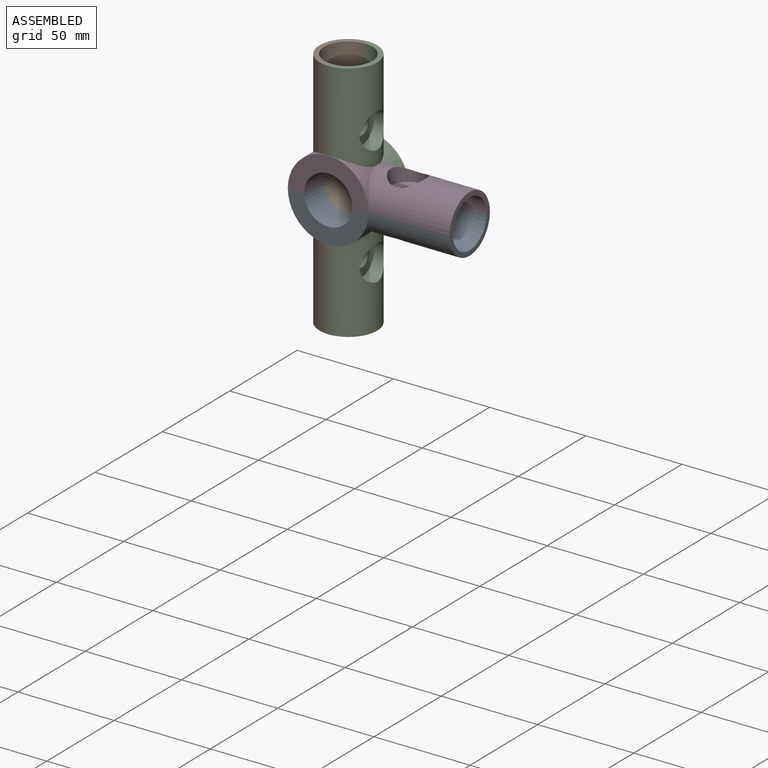
[diagram: assembled view]
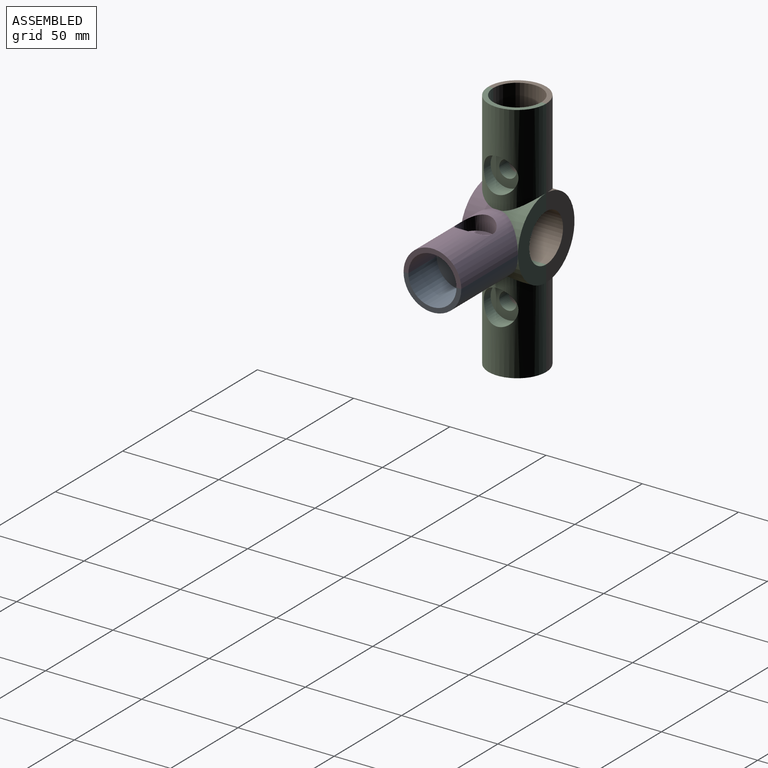
[diagram: assembled view, second angle]
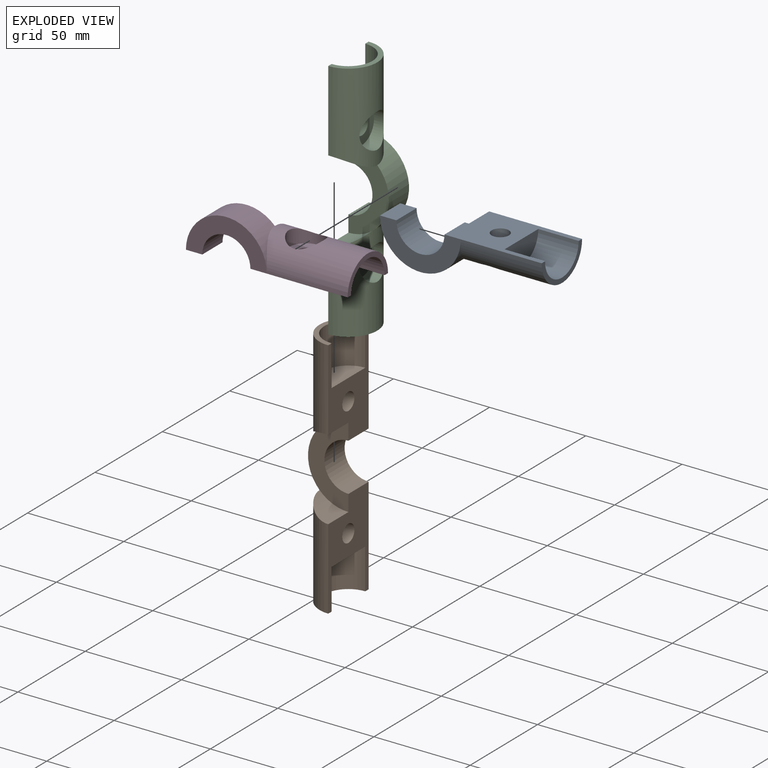
[diagram: exploded view]
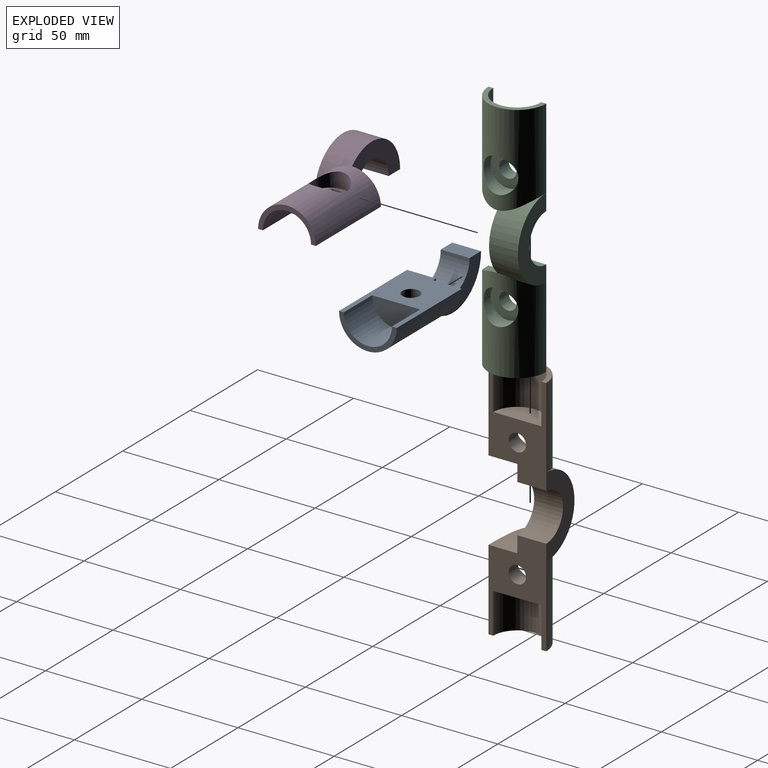
[diagram: exploded view, second angle]
ASSEMBLY  parts=4 mates=3
PART A: 14 faces, bbox 84x30x21 mm
  f0: plane 30x15mm, normal (-1,0,0), area 108mm2, adj f1,f8,f9
  f1: plane 50.5x30mm, normal (0,0,-1), area 893.4mm2, adj f0,f3,f4,f6,f7,f8,f9,f10
  f2: cylinder r=21mm len=42mm, axis (0,1,0), area 798.6mm2, adj f3,f5,f6,f8
  f3: plane 35.7x21mm, normal (0,1,0), area 382.1mm2, adj f1,f2,f4,f5,f7
  f4: cylinder r=12.5mm len=25mm, axis (0,1,0), area 589mm2, adj f1,f3,f5,f6
  f5: plane 15x8.5mm, normal (0,0,-1), area 127.5mm2, adj f2,f3,f4,f6
  f6: plane 42x21mm, normal (0,-1,0), area 447.3mm2, adj f1,f2,f4,f5
  f7: plane 15x15mm, normal (1,0,0), area 176.7mm2, adj f1,f3,f8
  f8: cylinder r=15mm len=48.3mm, axis (1,0,0), area 1930.7mm2, adj f0,f1,f2,f7,f11
  f9: cylinder r=12.5mm len=25mm, axis (1,0,0), area 824.7mm2, adj f0,f1,f10
  f10: plane 25x12.5mm, normal (-1,0,0), area 245.4mm2, adj f1,f9
  f11: cylinder r=9mm len=18mm, axis (0,0,-1), area 369.9mm2, adj f8,f13
  f12: cylinder r=4.5mm len=9mm, axis (0,0,-1), area 197.9mm2, adj f1,f13
  f13: plane 18x18mm, normal (0,0,1), area 190.9mm2, adj f11,f12
PART B: 22 faces, bbox 126x30x21 mm
  f0: plane 30x15mm, normal (1,0,0), area 108mm2, adj f1,f9,f12
  f1: cylinder r=12.5mm len=25mm, axis (1,0,0), area 824.7mm2, adj f0,f2,f9
  f2: plane 25x12.5mm, normal (1,0,0), area 245.4mm2, adj f1,f9
  f3: plane 25x12.5mm, normal (-1,0,0), area 245.4mm2, adj f4,f7
  f4: cylinder r=12.5mm len=25mm, axis (1,0,0), area 824.7mm2, adj f3,f5,f7
  f5: plane 30x15mm, normal (-1,0,0), area 108mm2, adj f4,f7,f13
  f6: cylinder r=21mm len=42mm, axis (0,-1,0), area 607.6mm2, adj f8,f11,f12,f13
  f7: plane 50.5x30mm, normal (0,0,1), area 798.9mm2, adj f3,f4,f5,f8,f10,f11,f13,f14
  f8: plane 42x21mm, normal (0,-1,0), area 447.3mm2, adj f6,f7,f9,f10,f14,f15
  f9: plane 50.5x30mm, normal (0,0,1), area 798.9mm2, adj f0,f1,f2,f8,f10,f11,f12,f15
  f10: cylinder r=12.5mm len=25mm, axis (0,-1,0), area 589mm2, adj f7,f8,f9,f11
  f11: plane 42x21mm, normal (0,1,0), area 447.3mm2, adj f6,f7,f9,f10
  f12: cylinder r=15mm len=48.3mm, axis (1,0,0), area 1853.1mm2, adj f0,f6,f9,f15,f18
  f13: cylinder r=15mm len=48.3mm, axis (1,0,0), area 1853.7mm2, adj f5,f6,f7,f14,f19
  f14: cylinder r=21mm len=15mm, axis (0,1,0), area 191mm2, adj f7,f8,f13
  f15: cylinder r=21mm len=15mm, axis (0,1,0), area 191mm2, adj f8,f9,f12
  f16: cylinder r=4.5mm len=9mm, axis (0,0,1), area 197.9mm2, adj f9,f17
  f17: plane 18x18mm, normal (0,0,-1), area 190.9mm2, adj f16,f18
  f18: cylinder r=9mm len=18mm, axis (0,0,1), area 369.9mm2, adj f12,f17
  f19: cylinder r=9mm len=18mm, axis (0,0,1), area 369.9mm2, adj f13,f21
  f20: cylinder r=4.5mm len=9mm, axis (0,0,1), area 197.9mm2, adj f7,f21
  f21: plane 18x18mm, normal (0,0,-1), area 190.9mm2, adj f19,f20
PART C: same geometry as B
PART D: 14 faces, bbox 84x30x21 mm
  f0: plane 15x15mm, normal (-1,0,0), area 176.7mm2, adj f4,f6,f10
  f1: plane 25x12.5mm, normal (1,0,0), area 245.4mm2, adj f2,f4
  f2: cylinder r=12.5mm len=25mm, axis (-1,0,0), area 824.7mm2, adj f1,f3,f4
  f3: plane 30x15mm, normal (1,0,0), area 108mm2, adj f2,f4,f10
  f4: plane 50.5x30mm, normal (0,0,-1), area 893.4mm2, adj f0,f1,f2,f3,f6,f8,f9,f10
  f5: cylinder r=21mm len=42mm, axis (0,1,0), area 798.6mm2, adj f6,f7,f9,f10
  f6: plane 35.7x21mm, normal (0,1,0), area 382.1mm2, adj f0,f4,f5,f7,f8
  f7: plane 15x8.5mm, normal (0,0,-1), area 127.5mm2, adj f5,f6,f8,f9
  f8: cylinder r=12.5mm len=25mm, axis (0,1,0), area 589mm2, adj f4,f6,f7,f9
  f9: plane 42x21mm, normal (0,-1,0), area 447.3mm2, adj f4,f5,f7,f8
  f10: cylinder r=15mm len=48.3mm, axis (-1,0,0), area 1931.2mm2, adj f0,f3,f4,f5,f11
  f11: cylinder r=9mm len=18mm, axis (0,0,-1), area 369.9mm2, adj f10,f13
  f12: cylinder r=4.5mm len=9mm, axis (0,0,-1), area 197.9mm2, adj f4,f13
  f13: plane 18x18mm, normal (0,0,1), area 190.9mm2, adj f11,f12
PLACE A rot(axis=(0,1,0),180deg) t=(-134.14,1.24,2.74)mm
PLACE B rot(axis=(0,1,0),90deg) t=(-134.14,1.24,2.74)mm
PLACE C rot(axis=(0,-1,0),90deg) t=(65.86,1.24,2.74)mm
PLACE D t=(-34.14,1.24,2.74)mm
MATE fastened C.f10 <-> D.f8  axis (0,-1,0) through (-34.14,1.24,2.74)mm
MATE fastened A.f8 <-> D.f2  axis (-1,0,0) through (28.86,1.24,2.74)mm
MATE fastened C.f1 <-> B.f1  axis (0,0,1) through (-34.14,1.24,65.74)mm
